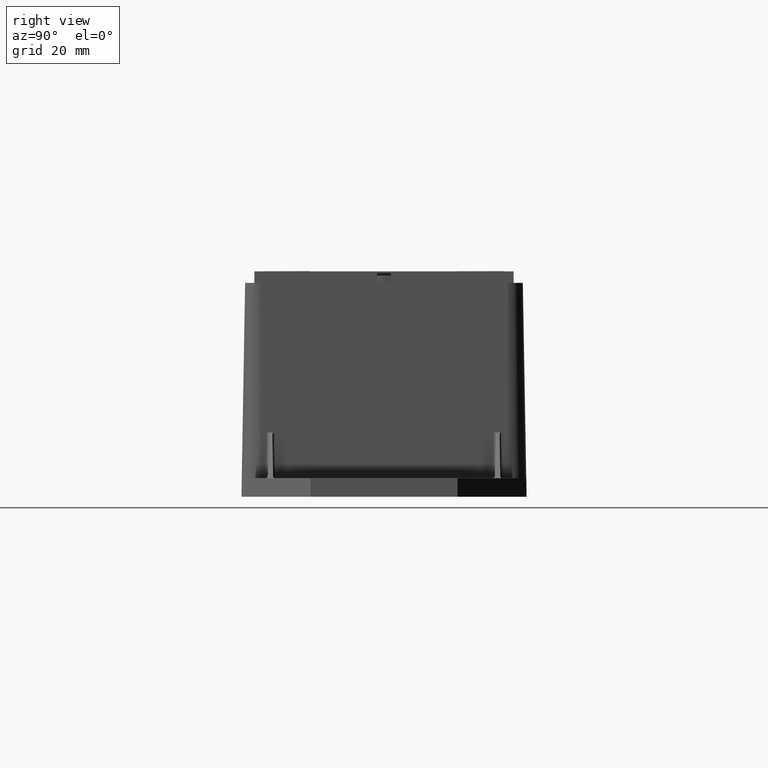
[diagram: clean part render]
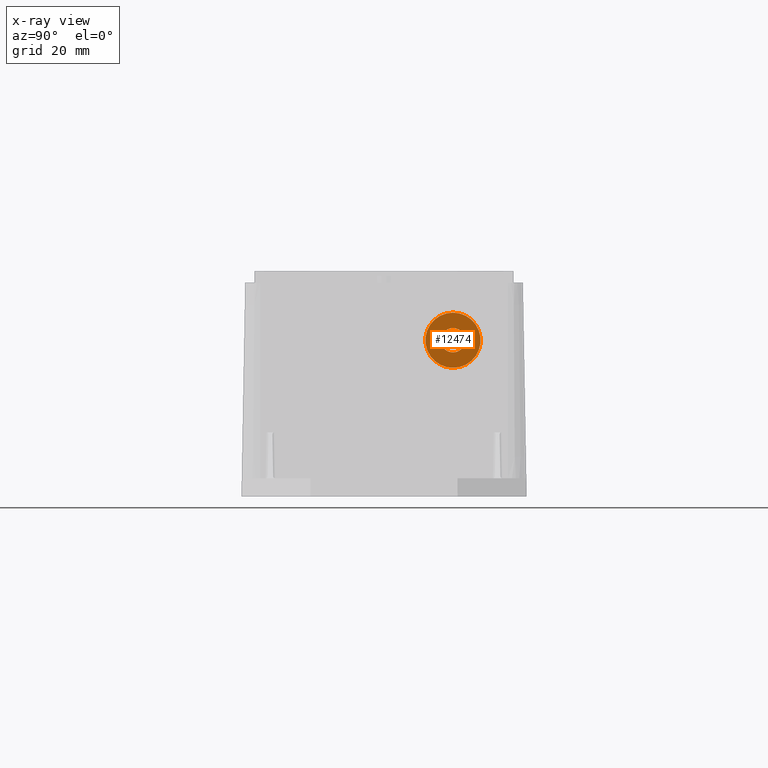
[diagram: x-ray — body ghosted, one internal face saturated and labeled with its STEP entity id]
A machine part, right view, then the same camera in x-ray: the body is ghosted and one INTERNAL B-rep face — a face not visible from any outside direction — is saturated and labeled: STEP entity #12474.
In plain terms, the highlighted planar face has unit normal (-1, 0, 0).
Its self-contained STEP definition (entity closure, byte-faithful):
#12432=CARTESIAN_POINT('',(-47.476348052153334,15.000000000000037,27.999999999999595));
#12433=VERTEX_POINT('',#12432);
#12434=CARTESIAN_POINT('',(-47.476348052153334,15.000000000000068,33.999999999999595));
#12435=DIRECTION('',(-1.0,0.0,0.0));
#12436=DIRECTION('',(0.0,0.0,1.0));
#12437=AXIS2_PLACEMENT_3D('',#12434,#12435,#12436);
#12438=CIRCLE('',#12437,6.000000000000001);
#12439=EDGE_CURVE('',#12433,#12433,#12438,.T.);
#12455=CARTESIAN_POINT('',(-47.476348052153334,15.000000000000068,33.999999999999595));
#12456=DIRECTION('',(-1.0,0.0,0.0));
#12457=DIRECTION('',(0.0,0.0,1.0));
#12458=AXIS2_PLACEMENT_3D('',#12455,#12456,#12457);
#12459=PLANE('',#12458);
#12460=ORIENTED_EDGE('',*,*,#12439,.F.);
#12461=EDGE_LOOP('',(#12460));
#12462=FACE_OUTER_BOUND('',#12461,.T.);
#12463=CARTESIAN_POINT('',(-47.476348052153334,15.000000000000053,31.349999999999593));
#12464=VERTEX_POINT('',#12463);
#12465=CARTESIAN_POINT('',(-47.476348052153334,15.000000000000068,33.999999999999595));
#12466=DIRECTION('',(-1.0,0.0,0.0));
#12467=DIRECTION('',(0.0,0.0,1.0));
#12468=AXIS2_PLACEMENT_3D('',#12465,#12466,#12467);
#12469=CIRCLE('',#12468,2.65);
#12470=EDGE_CURVE('',#12464,#12464,#12469,.T.);
#12471=ORIENTED_EDGE('',*,*,#12470,.T.);
#12472=EDGE_LOOP('',(#12471));
#12473=FACE_BOUND('',#12472,.T.);
#12474=ADVANCED_FACE('',(#12462,#12473),#12459,.F.);